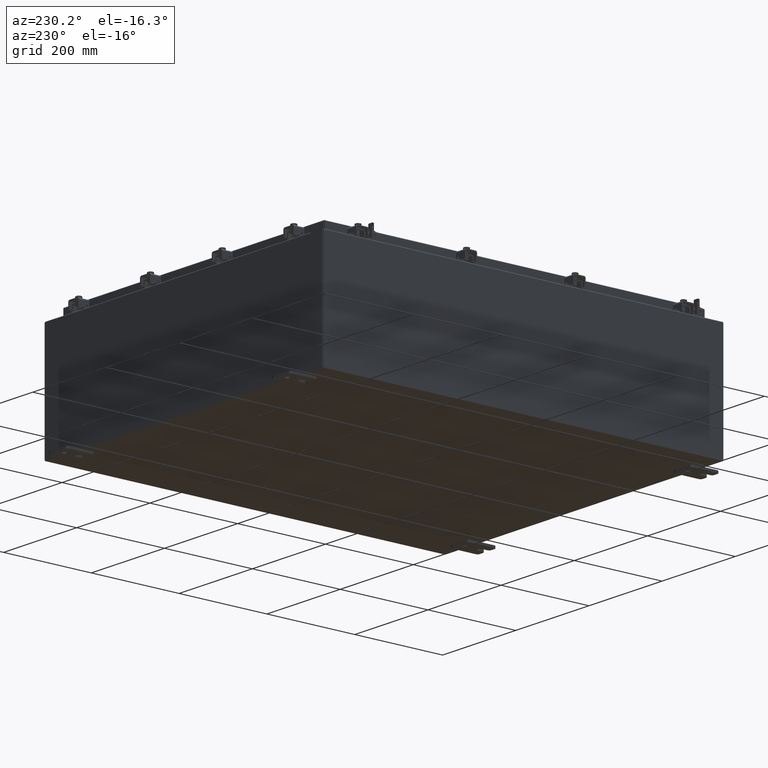
[diagram: clean part render]
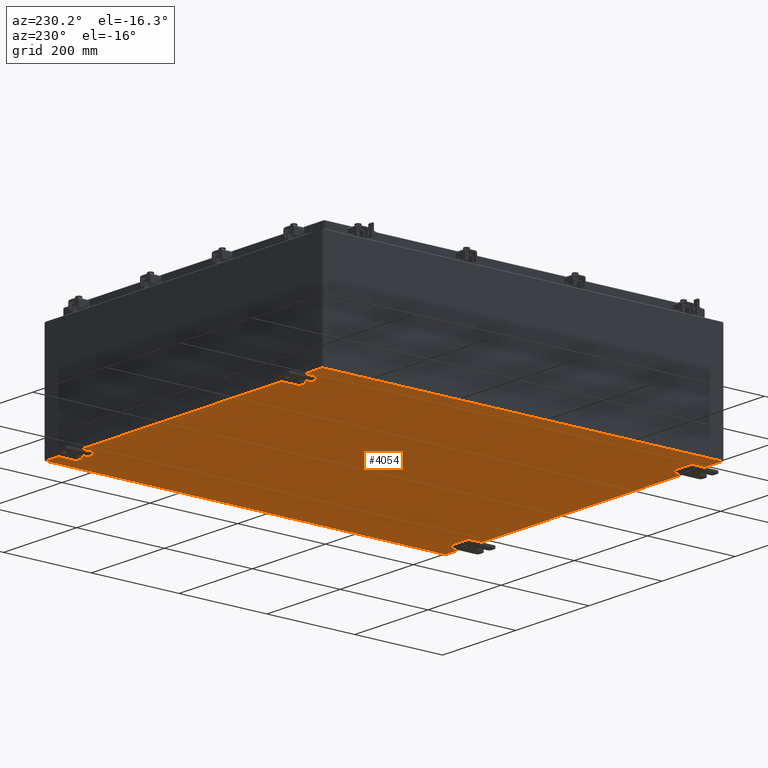
[diagram: same view with one face highlighted and labeled with its STEP entity id]
A machine part, auxiliary view. The second image highlights one B-rep face of the part: STEP entity #4054.
In plain terms, the highlighted planar face has unit normal (0, 0, -1).
Its self-contained STEP definition (entity closure, byte-faithful):
#526 = VERTEX_POINT ( 'NONE', #15406 ) ;
#1063 = VERTEX_POINT ( 'NONE', #9901 ) ;
#1188 = ORIENTED_EDGE ( 'NONE', *, *, #2065, .F. ) ;
#2065 = EDGE_CURVE ( 'NONE', #1063, #3599, #4089, .T. ) ;
#3079 = CARTESIAN_POINT ( 'NONE',  ( -14.91230000000000200, -17.92530000000000000, -0.07469999999999994700 ) ) ;
#3253 = CARTESIAN_POINT ( 'NONE',  ( 14.91229999999999800, 17.92530000000000000, -0.07470000000000251400 ) ) ;
#3599 = VERTEX_POINT ( 'NONE', #5760 ) ;
#4054 = ADVANCED_FACE ( 'NONE', ( #7353 ), #20429, .T. ) ;
#4089 = LINE ( 'NONE', #23575, #23570 ) ;
#5753 = VECTOR ( 'NONE', #21063, 39.37007874015748100 ) ;
#5760 = CARTESIAN_POINT ( 'NONE',  ( -14.91230000000000200, 17.92530000000000000, -0.07470000000000000300 ) ) ;
#6362 = LINE ( 'NONE', #13494, #5753 ) ;
#6570 = EDGE_CURVE ( 'NONE', #12203, #3599, #6362, .T. ) ;
#7353 = FACE_OUTER_BOUND ( 'NONE', #14742, .T. ) ;
#8809 = EDGE_CURVE ( 'NONE', #12203, #526, #23297, .T. ) ;
#9365 = DIRECTION ( 'NONE',  ( 1.000000000000000000, 0.0000000000000000000, 0.0000000000000000000 ) ) ;
#9901 = CARTESIAN_POINT ( 'NONE',  ( 14.91229999999999800, 17.92530000000000000, -0.07470000000000251400 ) ) ;
#11028 = DIRECTION ( 'NONE',  ( -1.000000000000000000, 0.0000000000000000000, -0.0000000000000000000 ) ) ;
#11035 = ORIENTED_EDGE ( 'NONE', *, *, #8809, .F. ) ;
#12099 = ORIENTED_EDGE ( 'NONE', *, *, #19599, .T. ) ;
#12203 = VERTEX_POINT ( 'NONE', #3079 ) ;
#13494 = CARTESIAN_POINT ( 'NONE',  ( -14.91230000000000200, -17.92530000000000000, -0.07469999999999994700 ) ) ;
#14495 = AXIS2_PLACEMENT_3D ( 'NONE', #16612, #22332, #11028 ) ;
#14589 = VECTOR ( 'NONE', #18338, 39.37007874015748100 ) ;
#14742 = EDGE_LOOP ( 'NONE', ( #11035, #19413, #1188, #12099 ) ) ;
#15406 = CARTESIAN_POINT ( 'NONE',  ( 14.91229999999999800, -17.92530000000000000, -0.07470000000000000300 ) ) ;
#16038 = DIRECTION ( 'NONE',  ( -1.000000000000000000, -0.0000000000000000000, -0.0000000000000000000 ) ) ;
#16612 = CARTESIAN_POINT ( 'NONE',  ( 0.0000000000000000000, 0.0000000000000000000, -0.07470000000000000300 ) ) ;
#18338 = DIRECTION ( 'NONE',  ( -0.0000000000000000000, -1.000000000000000000, 8.208677865577646300E-017 ) ) ;
#19413 = ORIENTED_EDGE ( 'NONE', *, *, #6570, .T. ) ;
#19599 = EDGE_CURVE ( 'NONE', #1063, #526, #19633, .T. ) ;
#19633 = LINE ( 'NONE', #3253, #14589 ) ;
#20429 = PLANE ( 'NONE',  #14495 ) ;
#20623 = CARTESIAN_POINT ( 'NONE',  ( -15.00000000000000400, -17.92530000000000000, -0.07470000000000000300 ) ) ;
#21063 = DIRECTION ( 'NONE',  ( -0.0000000000000000000, 1.000000000000000000, -0.0000000000000000000 ) ) ;
#22332 = DIRECTION ( 'NONE',  ( 0.0000000000000000000, 0.0000000000000000000, -1.000000000000000000 ) ) ;
#23297 = LINE ( 'NONE', #20623, #23887 ) ;
#23570 = VECTOR ( 'NONE', #16038, 39.37007874015748100 ) ;
#23575 = CARTESIAN_POINT ( 'NONE',  ( -15.00000000000000400, 17.92530000000000000, -0.07470000000000000300 ) ) ;
#23887 = VECTOR ( 'NONE', #9365, 39.37007874015748100 ) ;